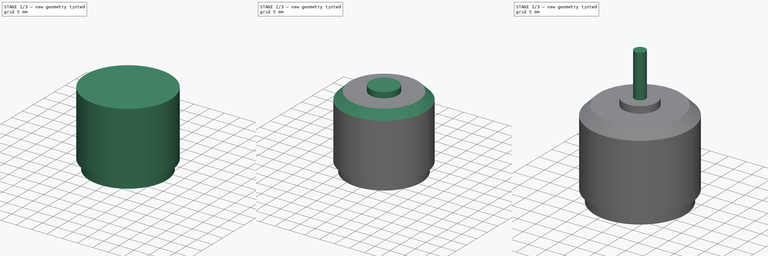
[diagram: build sequence overview — one tinted view per stage of 3, left to right]
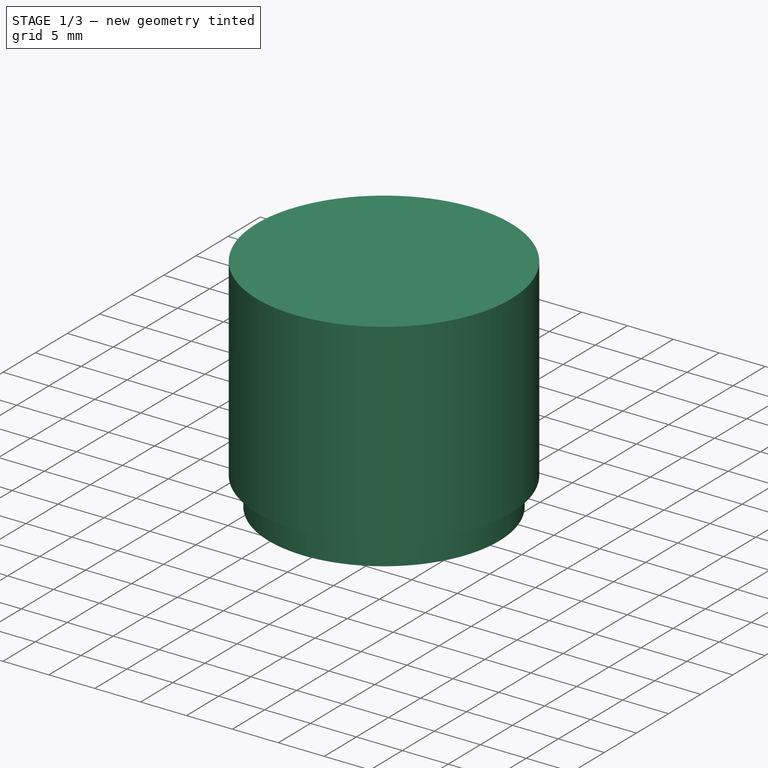
[diagram: stage 1 of 3 — iso view after this stage's code; geometry added in this stage tinted green]
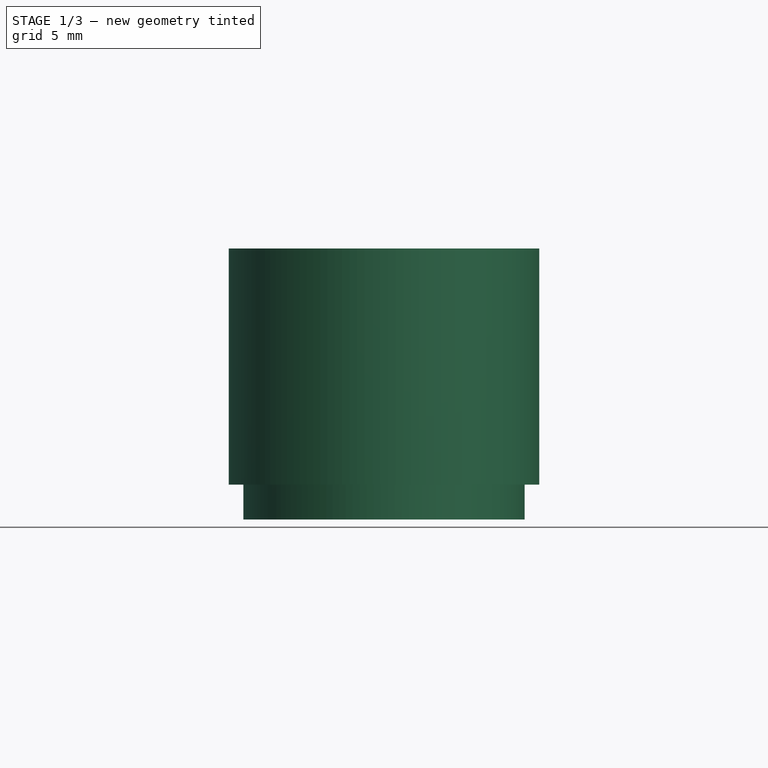
[diagram: stage 1 of 3 — front view after this stage's code; geometry added in this stage tinted green]
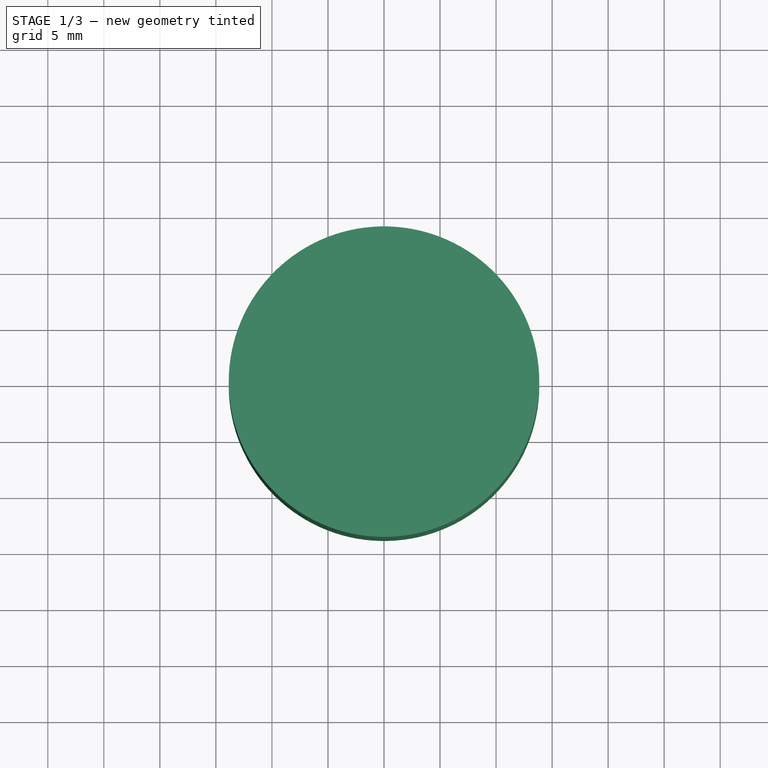
[diagram: stage 1 of 3 — top view after this stage's code; geometry added in this stage tinted green]
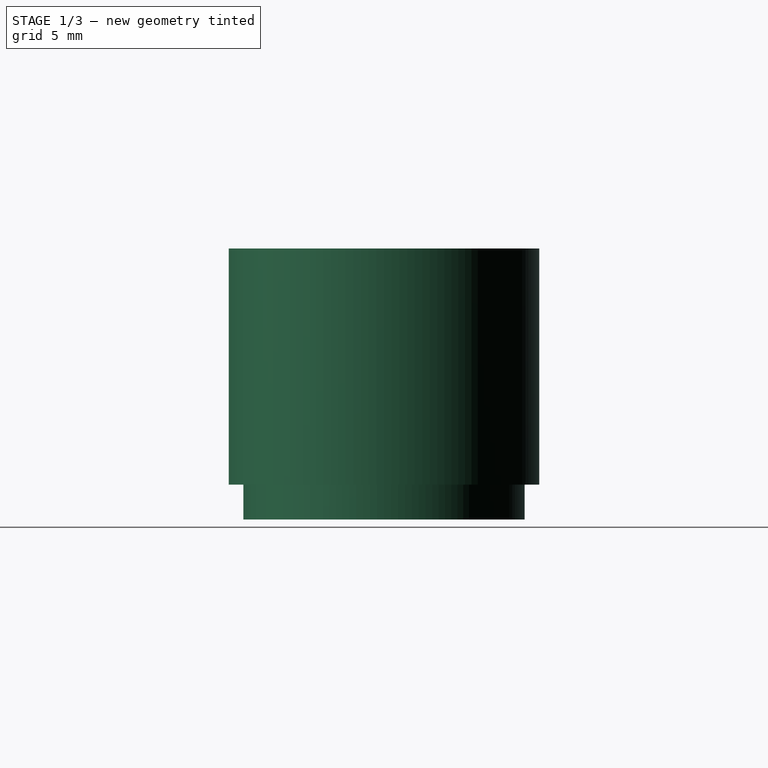
[diagram: stage 1 of 3 — right view after this stage's code; geometry added in this stage tinted green]
FCSTD DOCUMENT  (FreeCAD 0.15R4671 (Git))
Label: weapont_motor
License: All rights reserved
LicenseURL: http://en.wikipedia.org/wiki/All_rights_reserved
objects: Sketcher::SketchObject×7, PartDesign::Pad×6, PartDesign::Chamfer×1, PartDesign::Pocket×1
note: 22 computed .brp shape members not serialized (recipe doc carries the construction recipe); baked Part::Feature solids carry a one-line shape summary decoded from their .brp

FEATURE [Sketcher::SketchObject] Sketch
  sketch-geometry (1):
    g0: Circle CenterX=0 CenterY=0 CenterZ=0 NormalX=0 NormalY=0 NormalZ=1 Radius=13.8557
  constraints (2):
    c: Radius(g0) = 13.8557
    c: Coincident(g0,g-1)
FEATURE [PartDesign::Pad] Pad
  Length = 18.3515
  Length2 = 100
  Sketch = -> Sketch
  Type = 0
FEATURE [Sketcher::SketchObject] Sketch001
  Placement = pos=(0,0,0) rot=(1,0,0;3.14159rad)
  Support = -> Pad [Face2]
  sketch-geometry (1):
    g0: Circle CenterX=0 CenterY=0 CenterZ=0 NormalX=0 NormalY=0 NormalZ=1 Radius=12.554
  constraints (2):
    c: Radius(g0) = 12.554
    c: Coincident(g0,g-1)
FEATURE [PartDesign::Pad] Pad001
  Length = 3.1115
  Length2 = 100
  Sketch = -> Sketch001
  Type = 0
FEATURE [Sketcher::SketchObject] Sketch002
  Placement = pos=(0,0,18.3515) rot=(0,0,1;0rad)
  Support = -> Pad001 [Face3]
  sketch-geometry (1):
    g0: Circle CenterX=0 CenterY=0 CenterZ=0 NormalX=0 NormalY=0 NormalZ=1 Radius=13.8557
  constraints (2):
    c: Radius(g0) = 13.8557
    c: Coincident(g0,g-1)
FEATURE [PartDesign::Pad] Pad002
  Length = 2.7178
  Length2 = 100
  Sketch = -> Sketch002
  Type = 0
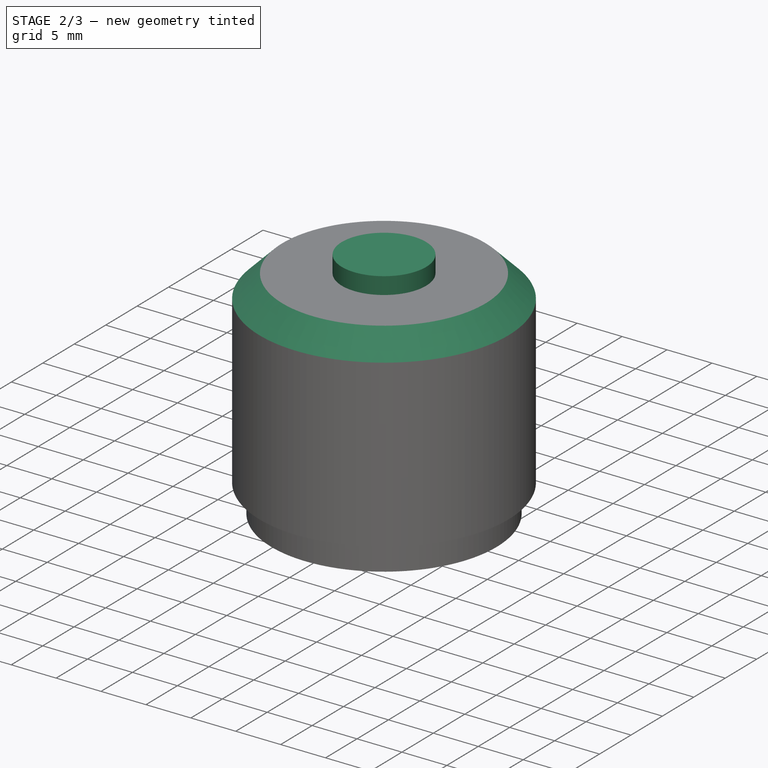
[diagram: stage 2 of 3 — iso view after this stage's code; geometry added in this stage tinted green]
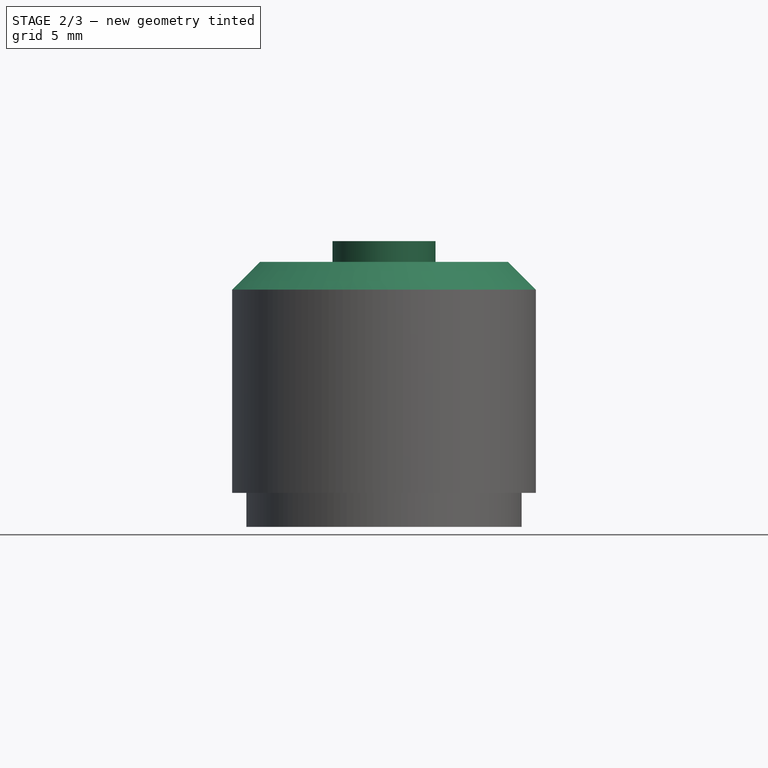
[diagram: stage 2 of 3 — front view after this stage's code; geometry added in this stage tinted green]
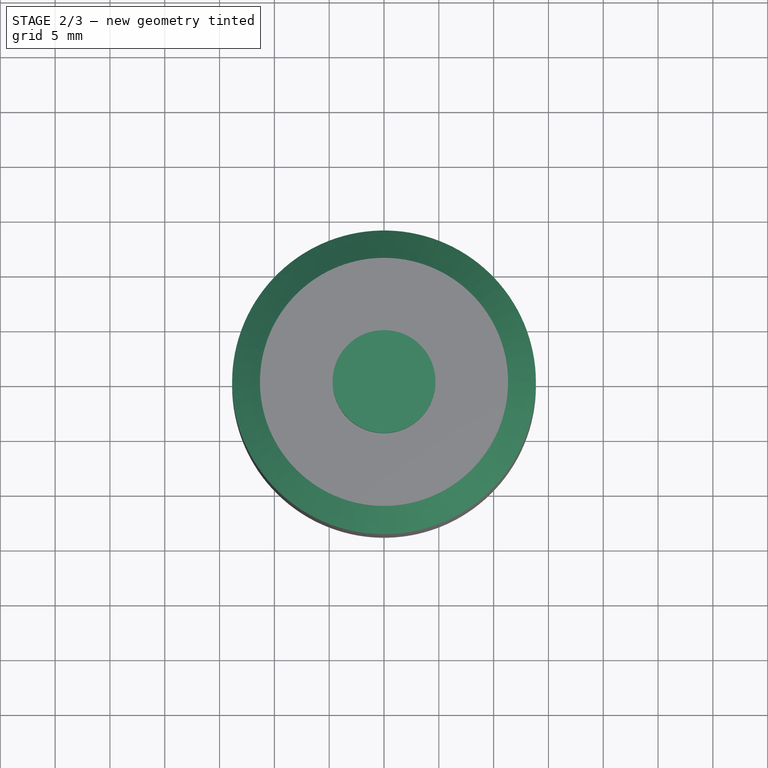
[diagram: stage 2 of 3 — top view after this stage's code; geometry added in this stage tinted green]
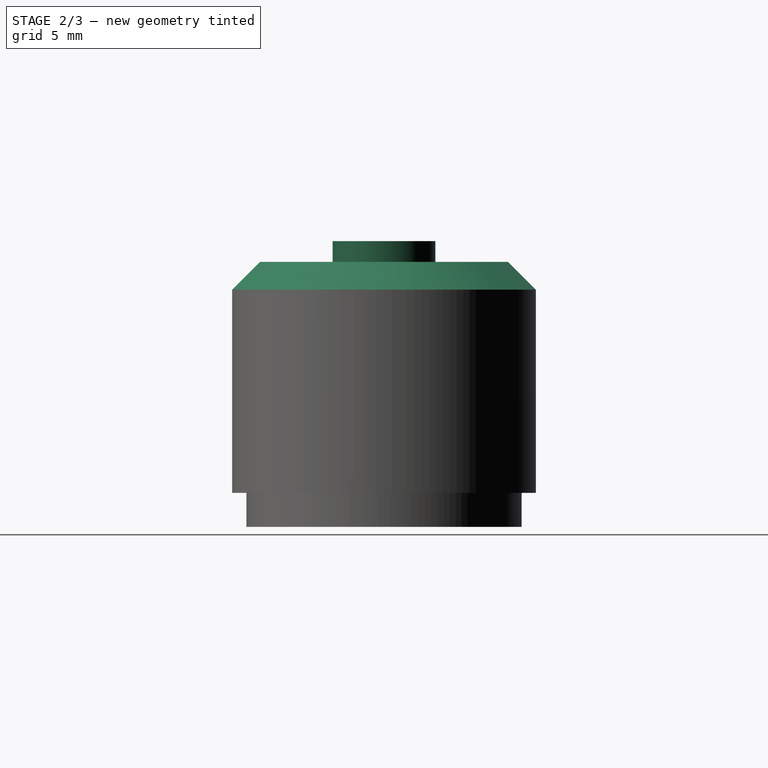
[diagram: stage 2 of 3 — right view after this stage's code; geometry added in this stage tinted green]
FEATURE [PartDesign::Chamfer] Chamfer
  Base = -> Pad002 [Edge8]
  Size = 2.54
FEATURE [Sketcher::SketchObject] Sketch003
  Placement = pos=(0,0,21.0693) rot=(0,0,1;0rad)
  Support = -> Chamfer [Face4]
  sketch-geometry (1):
    g0: Circle CenterX=0 CenterY=0 CenterZ=0 NormalX=0 NormalY=0 NormalZ=1 Radius=4.69265
  constraints (2):
    c: Radius(g0) = 4.69265
    c: Coincident(g0,g-1)
FEATURE [PartDesign::Pad] Pad003
  Length = 1.8923
  Length2 = 100
  Sketch = -> Sketch003
  Type = 0
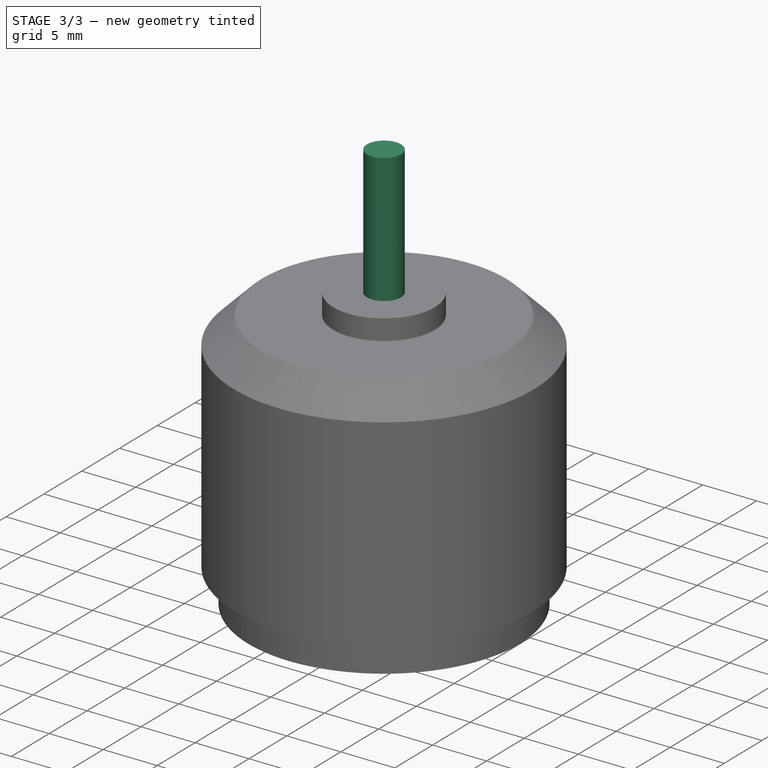
[diagram: stage 3 of 3 — iso view after this stage's code; geometry added in this stage tinted green]
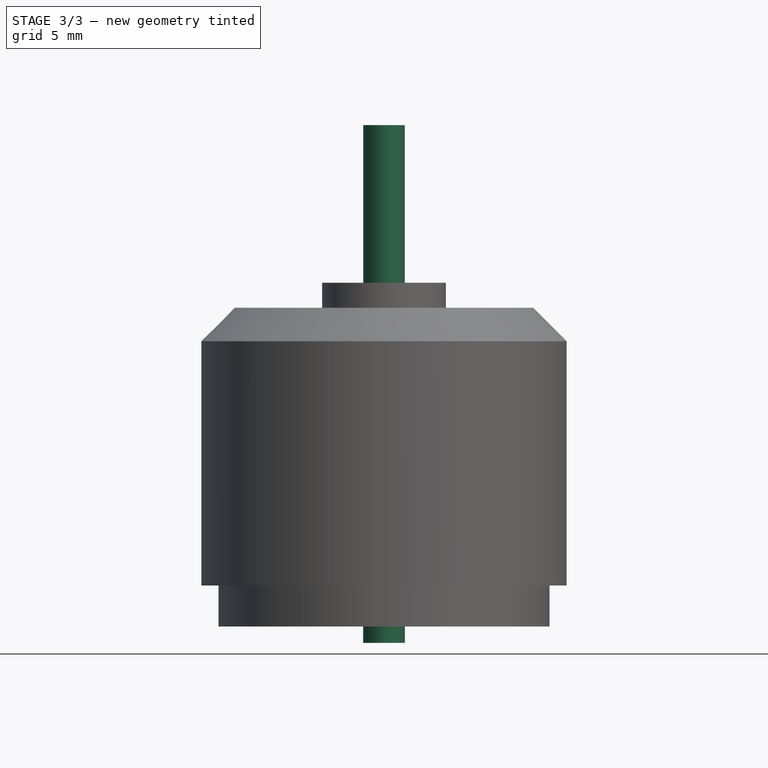
[diagram: stage 3 of 3 — front view after this stage's code; geometry added in this stage tinted green]
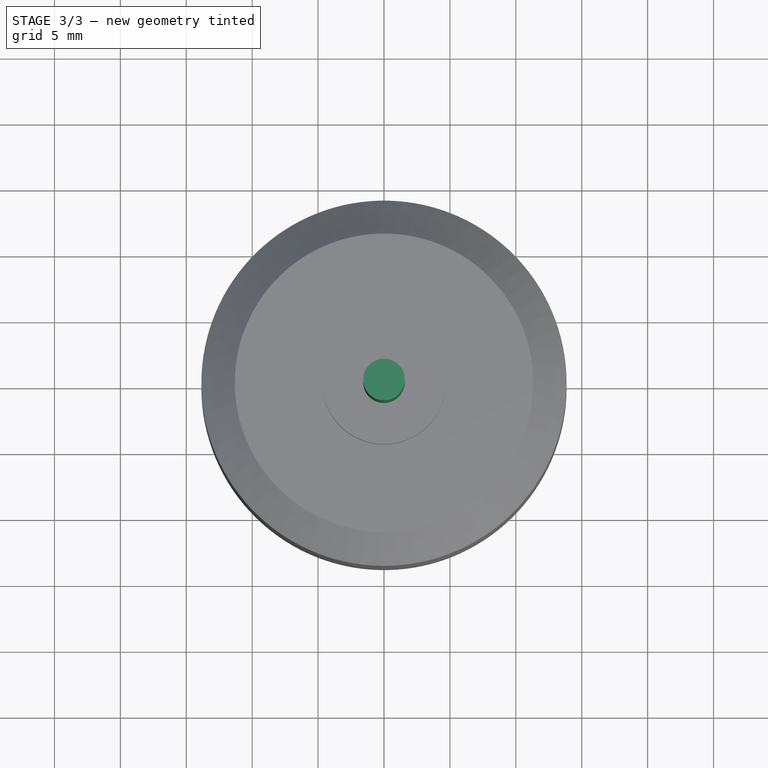
[diagram: stage 3 of 3 — top view after this stage's code; geometry added in this stage tinted green]
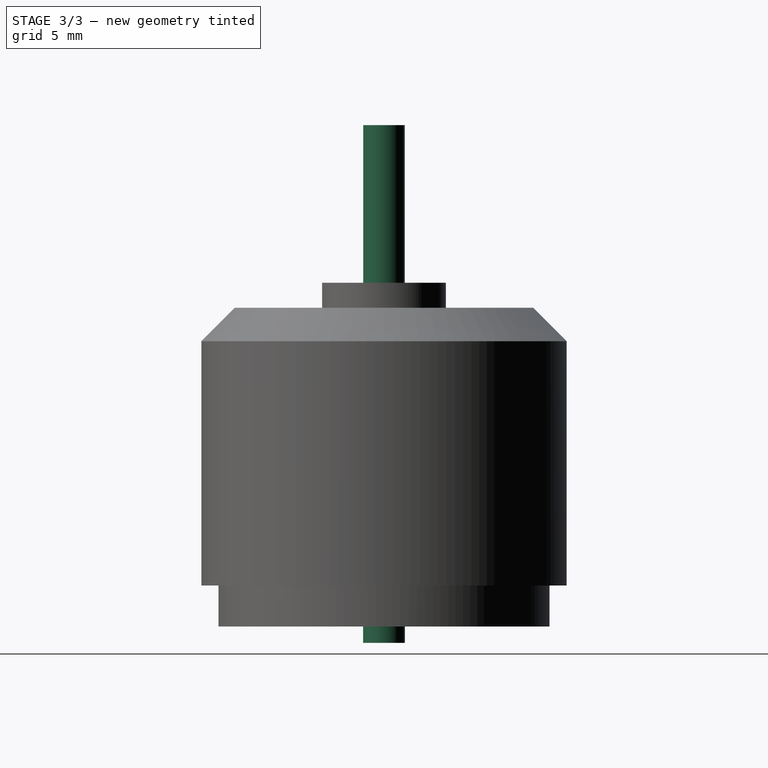
[diagram: stage 3 of 3 — right view after this stage's code; geometry added in this stage tinted green]
FEATURE [Sketcher::SketchObject] Sketch004
  Placement = pos=(0,0,22.9616) rot=(0,0,1;0rad)
  Support = -> Pad003 [Face1]
  sketch-geometry (1):
    g0: Circle CenterX=0 CenterY=0 CenterZ=0 NormalX=0 NormalY=0 NormalZ=1 Radius=1.57734
  constraints (2):
    c: Radius(g0) = 1.57734
    c: Coincident(g0,g-1)
FEATURE [PartDesign::Pad] Pad004
  Length = 11.9634
  Length2 = 100
  Sketch = -> Sketch004
  Type = 0
FEATURE [Sketcher::SketchObject] Sketch005
  Placement = pos=(0,0,-3.1115) rot=(1,0,0;3.14159rad)
  Support = -> Pad004 [Face11]
  sketch-geometry (8):
    g0: LineSegment [constr] StartX=0 StartY=0 StartZ=0 EndX=0 EndY=9.525 EndZ=0
    g1: LineSegment [constr] StartX=0 StartY=0 StartZ=0 EndX=0 EndY=9.525 EndZ=0
    g2: Circle CenterX=6.73354 CenterY=0 CenterZ=0 NormalX=0 NormalY=0 NormalZ=1 Radius=1.27
    g3: Circle CenterX=-6.73354 CenterY=0 CenterZ=0 NormalX=0 NormalY=0 NormalZ=1 Radius=1.27
    g4: Circle CenterX=0 CenterY=9.525 CenterZ=0 NormalX=0 NormalY=0 NormalZ=1 Radius=1.27
    g5: Circle CenterX=0 CenterY=-9.525 CenterZ=0 NormalX=0 NormalY=0 NormalZ=1 Radius=1.27
    g6: LineSegment [constr] StartX=0 StartY=0 StartZ=0 EndX=0 EndY=-9.525 EndZ=0
    g7: LineSegment [constr] StartX=-6.73354 StartY=0 StartZ=0 EndX=0 EndY=0 EndZ=0
  constraints (21):
    c: Vertical(g0)
    c: Vertical(g1)
    c: Equal(g0,g1)
    c: DistanceY(g0) = 9.525
    c: Coincident(g-1,g0)
    c: Coincident(g1,g-1)
    c: Radius(g2) = 1.27
    c: Coincident(g4,g1)
    c: Equal(g3,g4)
    c: Equal(g2,g4)
    c: Vertical(g6)
    c: DistanceY(g6) = -9.525
    c: Coincident(g6,g-1)
    c: Coincident(g6,g5)
    c: Horizontal(g7)
    c: DistanceX(g7) = 6.73354
    c: Coincident(g7,g-1)
    c: Coincident(g3,g7)
    c: DistanceX(g2,g0) = -6.73354
    c: DistanceY(g2,g5) = -9.525
    c: Radius(g5) = 1.27
FEATURE [PartDesign::Pocket] Pocket
  Length = 3.175
  Sketch = -> Sketch005
  Type = 0
FEATURE [Sketcher::SketchObject] Sketch006
  Placement = pos=(0,0,-3.1115) rot=(1,0,0;3.14159rad)
  Support = -> Pocket [Face11]
  sketch-geometry (1):
    g0: Circle CenterX=0 CenterY=0 CenterZ=0 NormalX=0 NormalY=0 NormalZ=1 Radius=1.5875
  constraints (2):
    c: Radius(g0) = 1.5875
    c: Coincident(g0,g-1)
FEATURE [PartDesign::Pad] Pad005
  Length = 1.2446
  Length2 = 100
  Sketch = -> Sketch006
  Type = 0
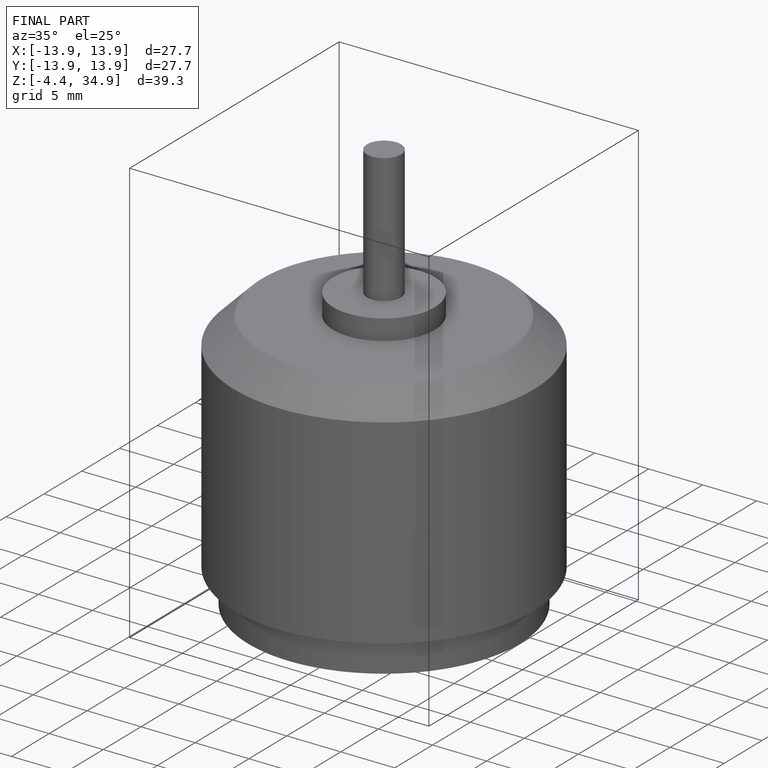
[diagram: finished part — iso view with bounding-box wireframe]
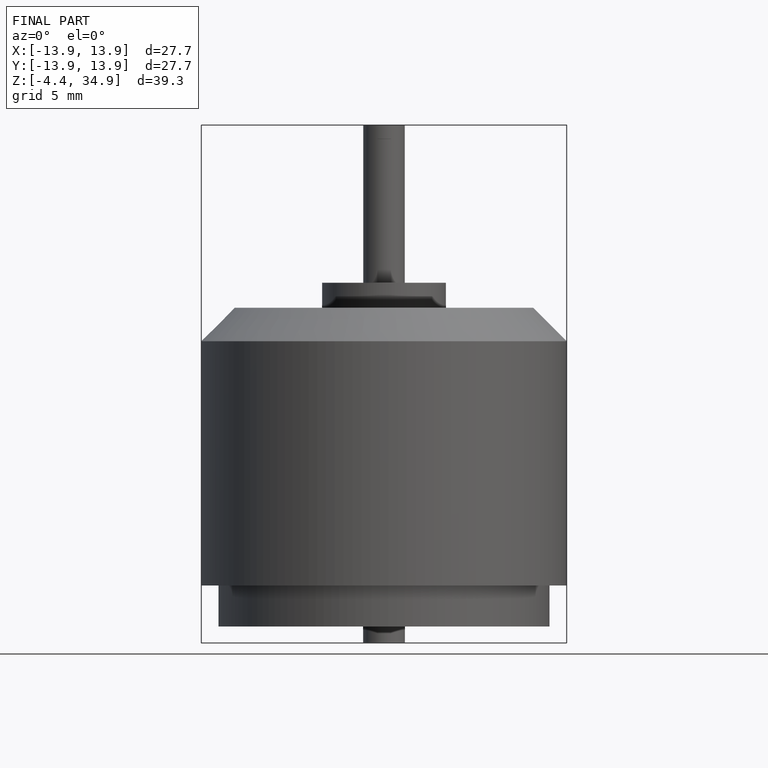
[diagram: finished part — front view with bounding-box wireframe]
